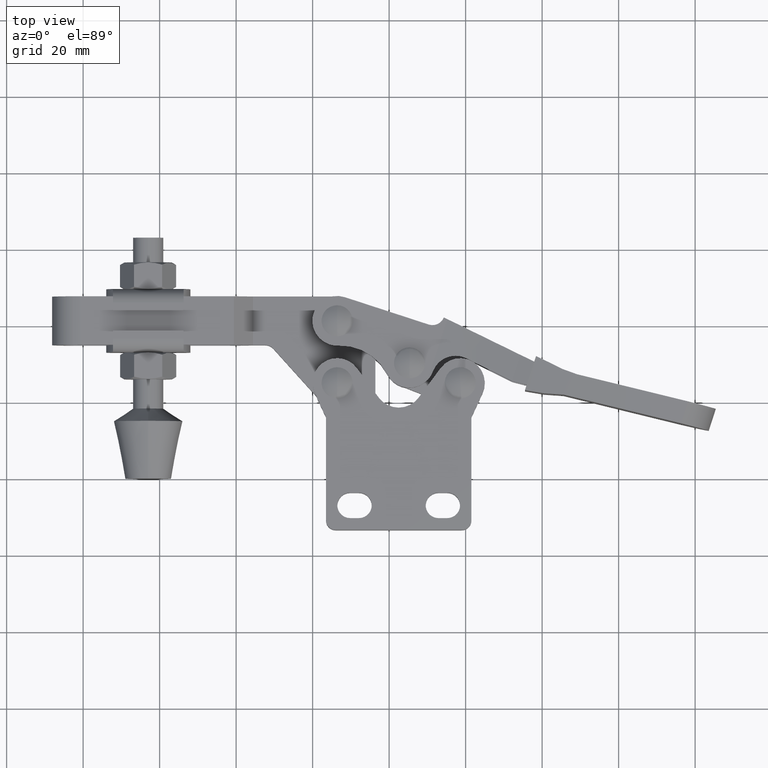
[diagram: clean part render]
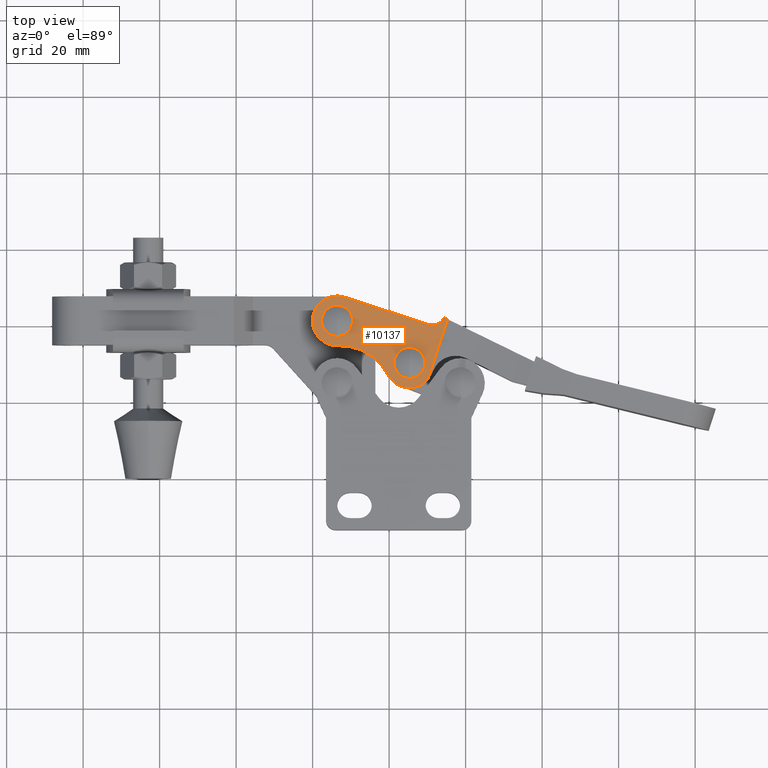
[diagram: same view with one face highlighted and labeled with its STEP entity id]
A machine part, top view. The second image highlights one B-rep face of the part: STEP entity #10137.
In plain terms, the highlighted planar face has unit normal (-0, 0, -1).
Its self-contained STEP definition (entity closure, byte-faithful):
#2 = CIRCLE ( 'NONE', #8420, 4.063249930782015800 ) ;
#189 = DIRECTION ( 'NONE',  ( 0.3101901272761489700, 0.9506745420702116300, -6.138348435031067000E-033 ) ) ;
#236 = CARTESIAN_POINT ( 'NONE',  ( 6.400000000004766300, 41.19999707674677600, 6.095809861063755400 ) ) ;
#271 = DIRECTION ( 'NONE',  ( 0.0000000000000000000, 5.423418723394456200E-031, -1.000000000000000000 ) ) ;
#475 = VERTEX_POINT ( 'NONE', #2089 ) ;
#492 = DIRECTION ( 'NONE',  ( 0.0000000000000000000, 5.423418723394456200E-031, -1.000000000000000000 ) ) ;
#553 = CARTESIAN_POINT ( 'NONE',  ( 25.32706736025763700, 30.18572355824123200, 6.095809861063755400 ) ) ;
#616 = VERTEX_POINT ( 'NONE', #3277 ) ;
#681 = CIRCLE ( 'NONE', #5540, 6.500000000000120800 ) ;
#813 = FACE_BOUND ( 'NONE', #10223, .T. ) ;
#961 = DIRECTION ( 'NONE',  ( -0.0000000000000000000, -5.423418723394456200E-031, 1.000000000000000000 ) ) ;
#1158 = AXIS2_PLACEMENT_3D ( 'NONE', #2567, #10005, #5085 ) ;
#1212 = DIRECTION ( 'NONE',  ( 0.0000000000000000000, 5.423418723394456200E-031, -1.000000000000000000 ) ) ;
#1384 = DIRECTION ( 'NONE',  ( 0.0000000000000000000, 1.000000000000000000, 0.0000000000000000000 ) ) ;
#1409 = CARTESIAN_POINT ( 'NONE',  ( 6.400000000004766300, 45.26324700752879000, 6.095809861063755400 ) ) ;
#1425 = CARTESIAN_POINT ( 'NONE',  ( 25.32706736025763700, 30.18572355824123200, 6.095809861063755400 ) ) ;
#1718 = EDGE_CURVE ( 'NONE', #5455, #2786, #6989, .T. ) ;
#1827 = VECTOR ( 'NONE', #8310, 1000.000000000000100 ) ;
#1860 = CIRCLE ( 'NONE', #5560, 6.500000000000112800 ) ;
#2045 = AXIS2_PLACEMENT_3D ( 'NONE', #1425, #7183, #2240 ) ;
#2089 = CARTESIAN_POINT ( 'NONE',  ( 6.400000000004765400, 37.13674714596476900, 6.095809861063755400 ) ) ;
#2240 = DIRECTION ( 'NONE',  ( 0.0000000000000000000, 1.000000000000000000, 0.0000000000000000000 ) ) ;
#2249 = EDGE_CURVE ( 'NONE', #3831, #475, #6993, .T. ) ;
#2291 = AXIS2_PLACEMENT_3D ( 'NONE', #2880, #8630, #3689 ) ;
#2293 = CIRCLE ( 'NONE', #2291, 3.244114452673074300 ) ;
#2430 = EDGE_CURVE ( 'NONE', #475, #3831, #4909, .T. ) ;
#2534 = VECTOR ( 'NONE', #189, 1000.000000000000100 ) ;
#2567 = CARTESIAN_POINT ( 'NONE',  ( -3.227537075737682700, 32.66539065776015600, 6.095809861063757200 ) ) ;
#2605 = DIRECTION ( 'NONE',  ( 0.0000000000000000000, 1.000000000000000000, 0.0000000000000000000 ) ) ;
#2612 = DIRECTION ( 'NONE',  ( 0.0000000000000000000, 1.000000000000000000, 0.0000000000000000000 ) ) ;
#2786 = VERTEX_POINT ( 'NONE', #4085 ) ;
#2860 = CARTESIAN_POINT ( 'NONE',  ( 23.31083153296264500, 24.00633903478475500, 6.095809861063757200 ) ) ;
#2873 = EDGE_CURVE ( 'NONE', #8509, #3481, #6641, .T. ) ;
#2880 = CARTESIAN_POINT ( 'NONE',  ( 31.32312756667260300, 43.31074836631316300, 6.095809861063757200 ) ) ;
#2885 = DIRECTION ( 'NONE',  ( 0.9506745420702116300, -0.3101901272761489700, -3.175572751612385900E-030 ) ) ;
#2975 = DIRECTION ( 'NONE',  ( 0.0000000000000000000, 5.423418723394456200E-031, -1.000000000000000000 ) ) ;
#3143 = EDGE_CURVE ( 'NONE', #8509, #10268, #5482, .T. ) ;
#3170 = VECTOR ( 'NONE', #2885, 1000.000000000000000 ) ;
#3174 = AXIS2_PLACEMENT_3D ( 'NONE', #5398, #492, #6228 ) ;
#3277 = CARTESIAN_POINT ( 'NONE',  ( 19.56253385071312000, 27.18236653362031100, 6.095809861063757200 ) ) ;
#3386 = AXIS2_PLACEMENT_3D ( 'NONE', #3447, #9193, #4247 ) ;
#3447 = CARTESIAN_POINT ( 'NONE',  ( 7.146615522463594800, 20.71359755751382200, 6.095809861063757200 ) ) ;
#3481 = VERTEX_POINT ( 'NONE', #4120 ) ;
#3491 = ORIENTED_EDGE ( 'NONE', *, *, #4624, .F. ) ;
#3689 = DIRECTION ( 'NONE',  ( 0.3101901272761495300, 0.9506745420702112900, 0.0000000000000000000 ) ) ;
#3747 = VERTEX_POINT ( 'NONE', #5352 ) ;
#3770 = EDGE_CURVE ( 'NONE', #9397, #5455, #9727, .T. ) ;
#3831 = VERTEX_POINT ( 'NONE', #1409 ) ;
#3923 = AXIS2_PLACEMENT_3D ( 'NONE', #6114, #1212, #6953 ) ;
#4085 = CARTESIAN_POINT ( 'NONE',  ( 30.31683529169955100, 40.22665134459483500, 6.095809861063757200 ) ) ;
#4120 = CARTESIAN_POINT ( 'NONE',  ( 35.25211501601198400, 41.62591504274967500, 6.095809861063757200 ) ) ;
#4247 = DIRECTION ( 'NONE',  ( 0.3101901272761489700, 0.9506745420702116300, 0.0000000000000000000 ) ) ;
#4338 = ORIENTED_EDGE ( 'NONE', *, *, #3770, .F. ) ;
#4410 = DIRECTION ( 'NONE',  ( -0.0000000000000000000, -5.423418723394456200E-031, 1.000000000000000000 ) ) ;
#4543 = EDGE_CURVE ( 'NONE', #616, #4886, #8409, .T. ) ;
#4624 = EDGE_CURVE ( 'NONE', #9032, #9397, #1860, .T. ) ;
#4646 = ORIENTED_EDGE ( 'NONE', *, *, #1718, .F. ) ;
#4726 = EDGE_CURVE ( 'NONE', #4886, #9032, #9051, .T. ) ;
#4741 = AXIS2_PLACEMENT_3D ( 'NONE', #236, #961, #2612 ) ;
#4772 = ORIENTED_EDGE ( 'NONE', *, *, #5546, .F. ) ;
#4785 = VERTEX_POINT ( 'NONE', #8936 ) ;
#4886 = VERTEX_POINT ( 'NONE', #5742 ) ;
#4909 = CIRCLE ( 'NONE', #4741, 4.063249930782012200 ) ;
#5085 = DIRECTION ( 'NONE',  ( 0.3101901272761489700, 0.9506745420702116300, -6.138348435031067000E-033 ) ) ;
#5173 = DIRECTION ( 'NONE',  ( 0.3101901272761495300, 0.9506745420702112900, 0.0000000000000000000 ) ) ;
#5188 = CARTESIAN_POINT ( 'NONE',  ( 6.400000000004762800, 41.19999707674679000, 6.095809861063757200 ) ) ;
#5352 = CARTESIAN_POINT ( 'NONE',  ( 34.32526118054890700, 42.08132885025023000, 6.095809861063757200 ) ) ;
#5398 = CARTESIAN_POINT ( 'NONE',  ( 6.400000000004762800, 41.19999707674679000, 6.095809861063757200 ) ) ;
#5401 = ORIENTED_EDGE ( 'NONE', *, *, #2873, .T. ) ;
#5455 = VERTEX_POINT ( 'NONE', #8173 ) ;
#5482 = CIRCLE ( 'NONE', #3923, 6.500000000000120800 ) ;
#5540 = AXIS2_PLACEMENT_3D ( 'NONE', #7893, #2975, #8722 ) ;
#5546 = EDGE_CURVE ( 'NONE', #3747, #3481, #6182, .T. ) ;
#5560 = AXIS2_PLACEMENT_3D ( 'NONE', #5188, #271, #5999 ) ;
#5716 = CARTESIAN_POINT ( 'NONE',  ( 25.32706736025763700, 34.24897348902325000, 6.095809861063755400 ) ) ;
#5742 = CARTESIAN_POINT ( 'NONE',  ( 6.636731751028301900, 34.70430942430699200, 6.095809861063757200 ) ) ;
#5816 = CARTESIAN_POINT ( 'NONE',  ( 7.802416951752530100, 55.11344784660232700, 6.095809861063757200 ) ) ;
#5999 = DIRECTION ( 'NONE',  ( 0.3101901272761492000, 0.9506745420702115100, 0.0000000000000000000 ) ) ;
#6114 = CARTESIAN_POINT ( 'NONE',  ( 25.32706736025765100, 30.18572355824125000, 6.095809861063757200 ) ) ;
#6182 = LINE ( 'NONE', #5816, #1827 ) ;
#6228 = DIRECTION ( 'NONE',  ( 0.3101901272761492000, 0.9506745420702115100, 0.0000000000000000000 ) ) ;
#6277 = ORIENTED_EDGE ( 'NONE', *, *, #7477, .T. ) ;
#6290 = DIRECTION ( 'NONE',  ( 0.0000000000000000000, 5.423418723394456200E-031, -1.000000000000000000 ) ) ;
#6464 = CARTESIAN_POINT ( 'NONE',  ( 8.416235827299861000, 47.37938160020324600, 6.095809861063757200 ) ) ;
#6621 = PLANE ( 'NONE',  #1158 ) ;
#6641 = LINE ( 'NONE', #10022, #2534 ) ;
#6953 = DIRECTION ( 'NONE',  ( 0.3101901272761493600, 0.9506745420702115100, 0.0000000000000000000 ) ) ;
#6989 = CIRCLE ( 'NONE', #10523, 3.244114452673074300 ) ;
#6993 = CIRCLE ( 'NONE', #7180, 4.063249930782012200 ) ;
#7088 = ORIENTED_EDGE ( 'NONE', *, *, #10401, .T. ) ;
#7180 = AXIS2_PLACEMENT_3D ( 'NONE', #9964, #7251, #2605 ) ;
#7183 = DIRECTION ( 'NONE',  ( 0.0000000000000000000, 5.423418723394456200E-031, -1.000000000000000000 ) ) ;
#7251 = DIRECTION ( 'NONE',  ( -0.0000000000000000000, -5.423418723394456200E-031, 1.000000000000000000 ) ) ;
#7322 = ORIENTED_EDGE ( 'NONE', *, *, #3143, .F. ) ;
#7477 = EDGE_CURVE ( 'NONE', #4785, #8362, #2, .T. ) ;
#7533 = CARTESIAN_POINT ( 'NONE',  ( 4.383764172709757800, 35.02061255329030600, 6.095809861063757200 ) ) ;
#7844 = CARTESIAN_POINT ( 'NONE',  ( 2.231809164322584600, 49.39726259819599400, 6.095809861063757200 ) ) ;
#7893 = CARTESIAN_POINT ( 'NONE',  ( 25.32706736025765100, 30.18572355824125000, 6.095809861063757200 ) ) ;
#7950 = EDGE_CURVE ( 'NONE', #2786, #3747, #2293, .T. ) ;
#8173 = CARTESIAN_POINT ( 'NONE',  ( 30.12270908966964500, 40.29690131277641300, 6.095809861063757200 ) ) ;
#8310 = DIRECTION ( 'NONE',  ( 0.8975094151716313000, -0.4409952943947093600, -3.143053260617776100E-030 ) ) ;
#8329 = ORIENTED_EDGE ( 'NONE', *, *, #4726, .F. ) ;
#8362 = VERTEX_POINT ( 'NONE', #5716 ) ;
#8409 = CIRCLE ( 'NONE', #3386, 14.00000000000001600 ) ;
#8420 = AXIS2_PLACEMENT_3D ( 'NONE', #553, #6290, #1384 ) ;
#8509 = VERTEX_POINT ( 'NONE', #9346 ) ;
#8630 = DIRECTION ( 'NONE',  ( -0.0000000000000000000, -5.423418723394456200E-031, 1.000000000000000000 ) ) ;
#8722 = DIRECTION ( 'NONE',  ( 0.3101901272761493600, 0.9506745420702115100, 0.0000000000000000000 ) ) ;
#8853 = ORIENTED_EDGE ( 'NONE', *, *, #2430, .F. ) ;
#8920 = CIRCLE ( 'NONE', #2045, 4.063249930782015800 ) ;
#8936 = CARTESIAN_POINT ( 'NONE',  ( 25.32706736025763700, 26.12247362745922200, 6.095809861063755400 ) ) ;
#9032 = VERTEX_POINT ( 'NONE', #7533 ) ;
#9051 = CIRCLE ( 'NONE', #3174, 6.500000000000112800 ) ;
#9193 = DIRECTION ( 'NONE',  ( -0.0000000000000000000, -5.423418723394456200E-031, 1.000000000000000000 ) ) ;
#9313 = FACE_BOUND ( 'NONE', #9498, .T. ) ;
#9346 = CARTESIAN_POINT ( 'NONE',  ( 30.06870129353114900, 25.73972449809391700, 6.095809861063757200 ) ) ;
#9350 = ORIENTED_EDGE ( 'NONE', *, *, #2249, .F. ) ;
#9397 = VERTEX_POINT ( 'NONE', #6464 ) ;
#9498 = EDGE_LOOP ( 'NONE', ( #7088, #6277 ) ) ;
#9566 = FACE_OUTER_BOUND ( 'NONE', #10561, .T. ) ;
#9608 = ORIENTED_EDGE ( 'NONE', *, *, #7950, .F. ) ;
#9727 = LINE ( 'NONE', #7844, #3170 ) ;
#9816 = ORIENTED_EDGE ( 'NONE', *, *, #10332, .F. ) ;
#9964 = CARTESIAN_POINT ( 'NONE',  ( 6.400000000004766300, 41.19999707674677600, 6.095809861063755400 ) ) ;
#10005 = DIRECTION ( 'NONE',  ( -1.618351723716892500E-031, 4.634743261847712500E-032, -1.000000000000000000 ) ) ;
#10022 = CARTESIAN_POINT ( 'NONE',  ( 28.90731536317216300, 22.18029452136910600, 6.095809861063757200 ) ) ;
#10131 = CARTESIAN_POINT ( 'NONE',  ( 31.32312756667260300, 43.31074836631316300, 6.095809861063757200 ) ) ;
#10137 = ADVANCED_FACE ( 'NONE', ( #9313, #813, #9566 ), #6621, .F. ) ;
#10223 = EDGE_LOOP ( 'NONE', ( #9350, #8853 ) ) ;
#10268 = VERTEX_POINT ( 'NONE', #2860 ) ;
#10332 = EDGE_CURVE ( 'NONE', #10268, #616, #681, .T. ) ;
#10401 = EDGE_CURVE ( 'NONE', #8362, #4785, #8920, .T. ) ;
#10430 = ORIENTED_EDGE ( 'NONE', *, *, #4543, .F. ) ;
#10523 = AXIS2_PLACEMENT_3D ( 'NONE', #10131, #4410, #5173 ) ;
#10561 = EDGE_LOOP ( 'NONE', ( #4772, #9608, #4646, #4338, #3491, #8329, #10430, #9816, #7322, #5401 ) ) ;